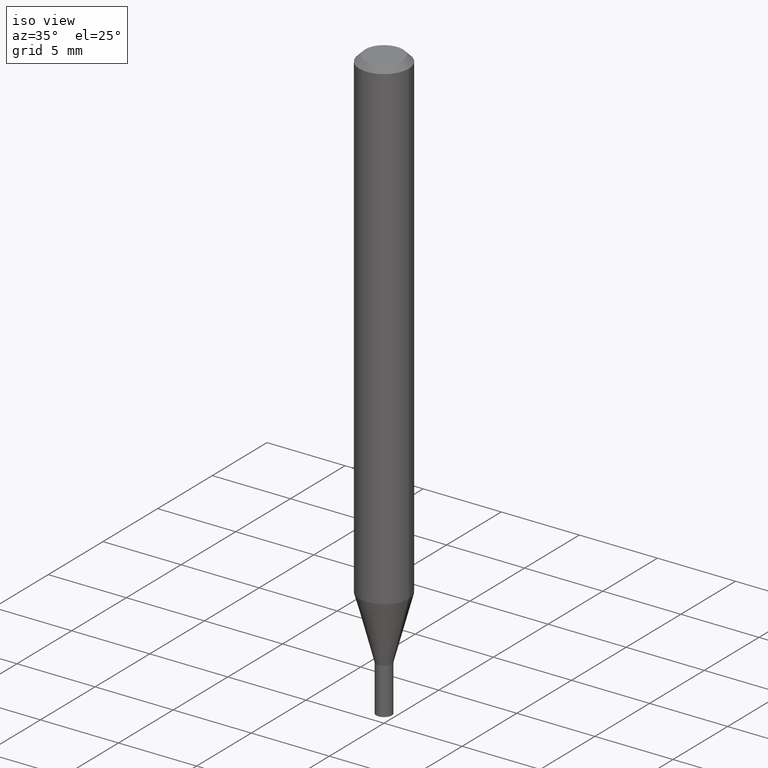
[diagram: clean part render]
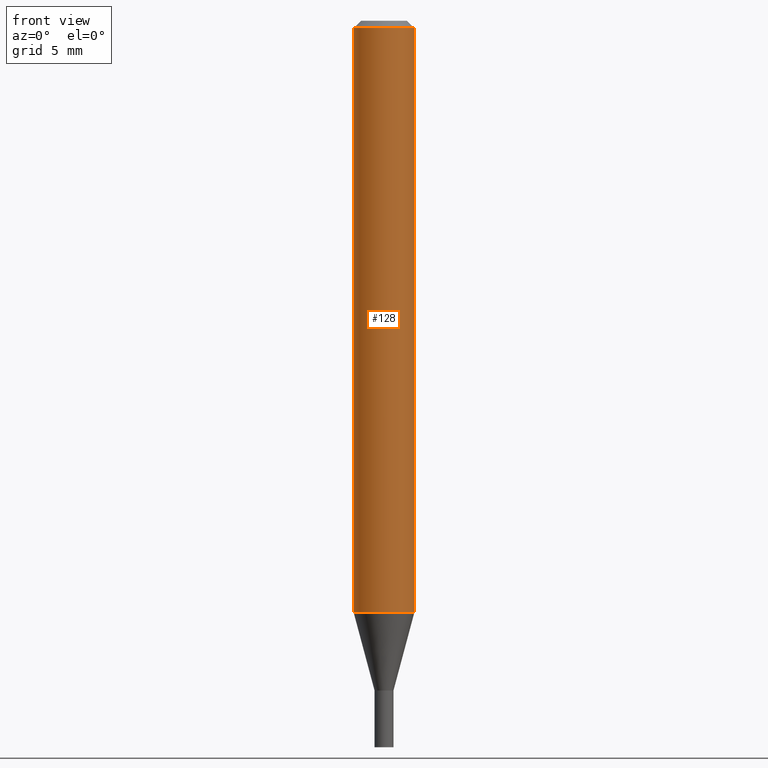
[diagram: tour spotlight — one face highlighted and labeled with its STEP entity id]
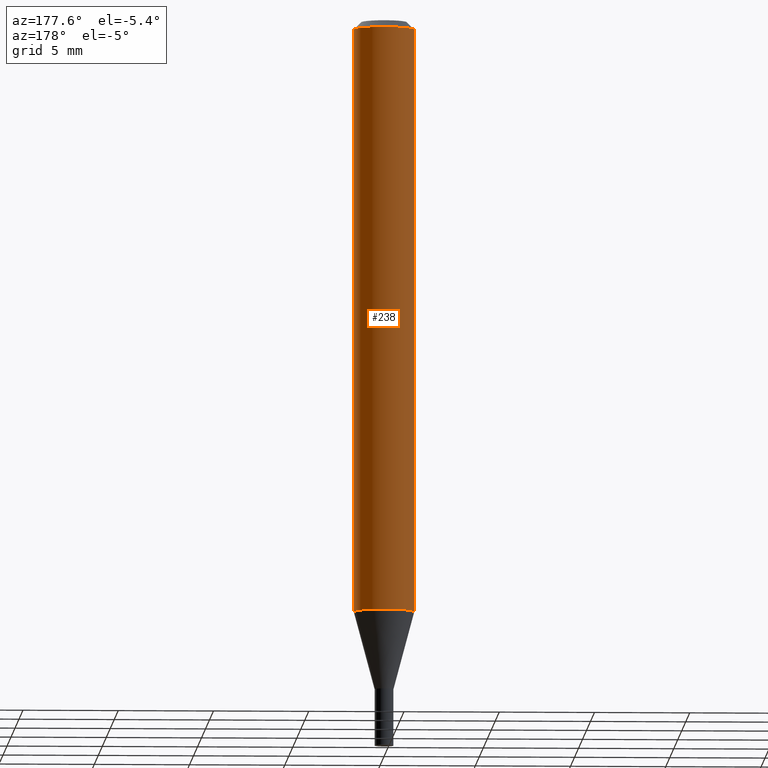
[diagram: tour spotlight — one face highlighted and labeled with its STEP entity id]
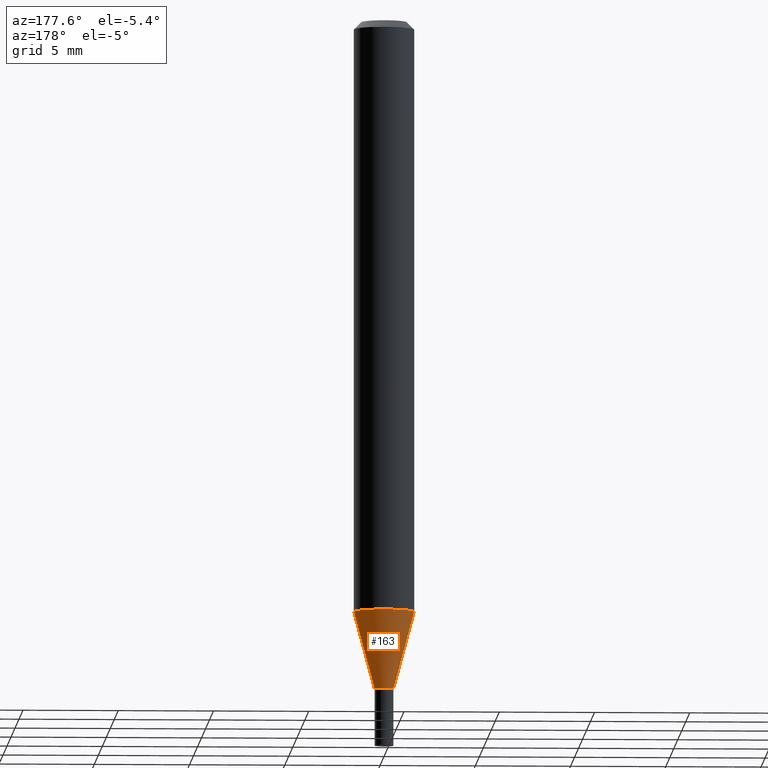
[diagram: tour spotlight — one face highlighted and labeled with its STEP entity id]
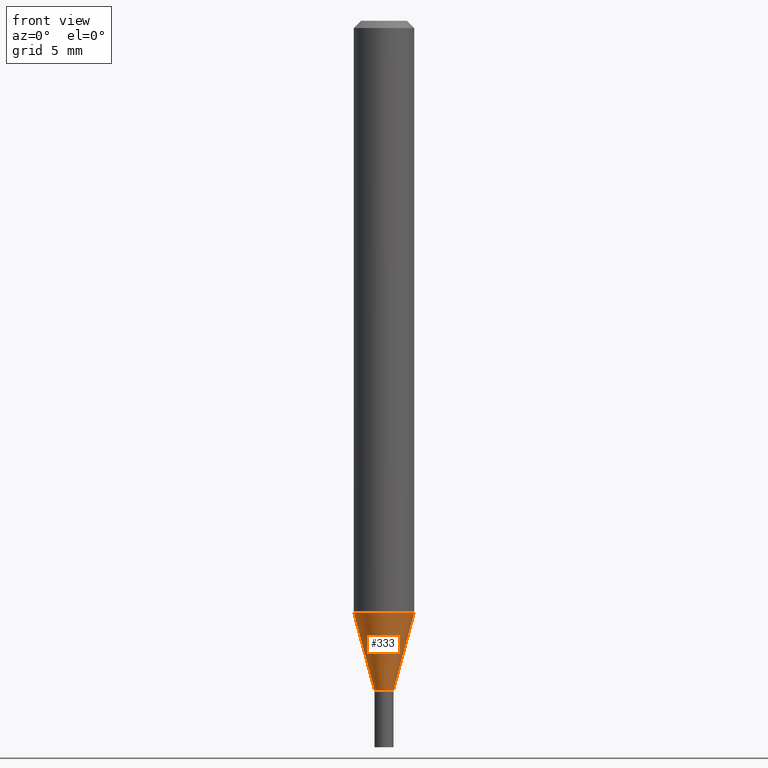
[diagram: tour spotlight — one face highlighted and labeled with its STEP entity id]
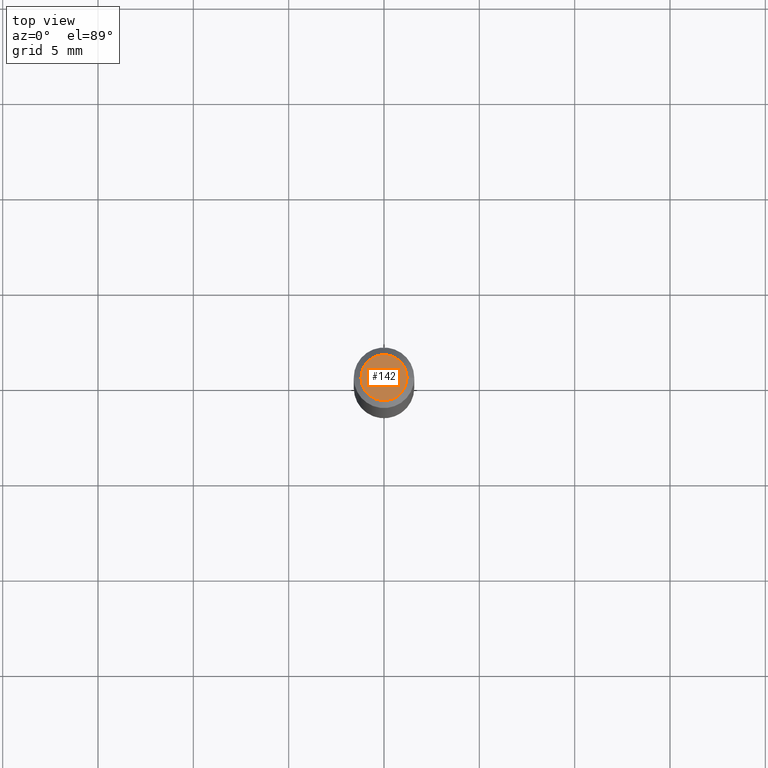
[diagram: tour spotlight — one face highlighted and labeled with its STEP entity id]
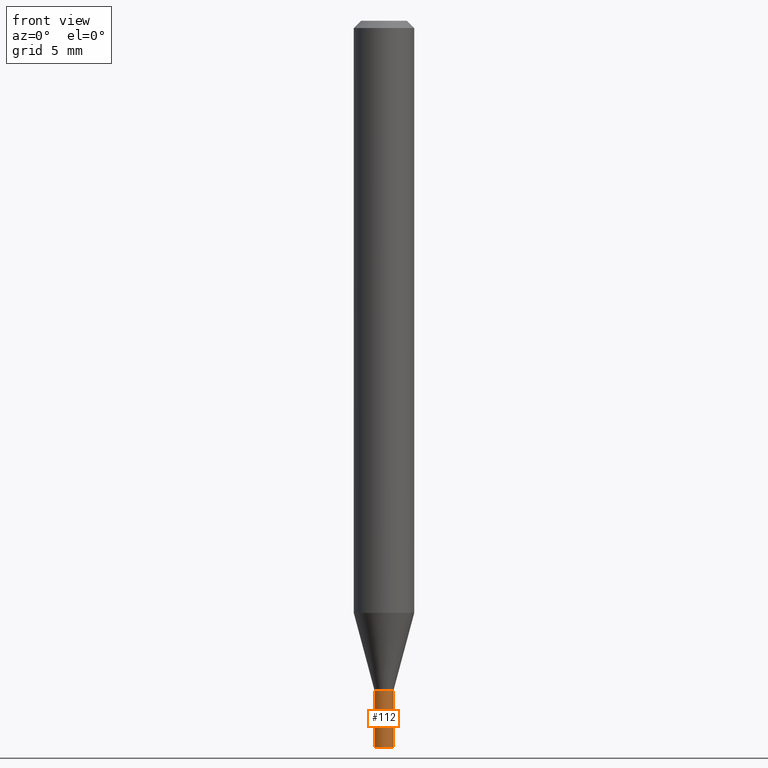
[diagram: tour spotlight — one face highlighted and labeled with its STEP entity id]
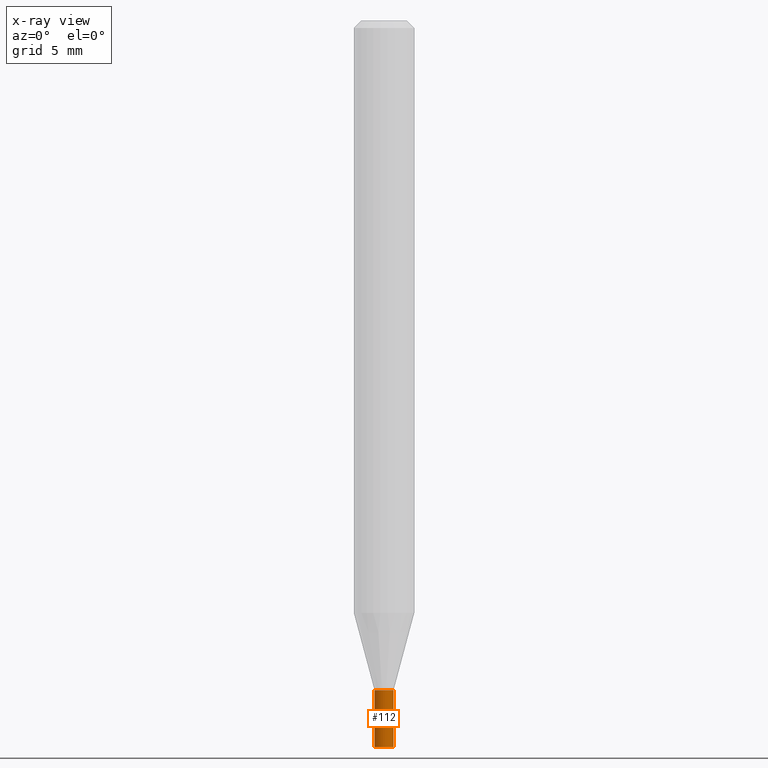
[diagram: x-ray of the same camera — body ghosted, this tour face saturated]
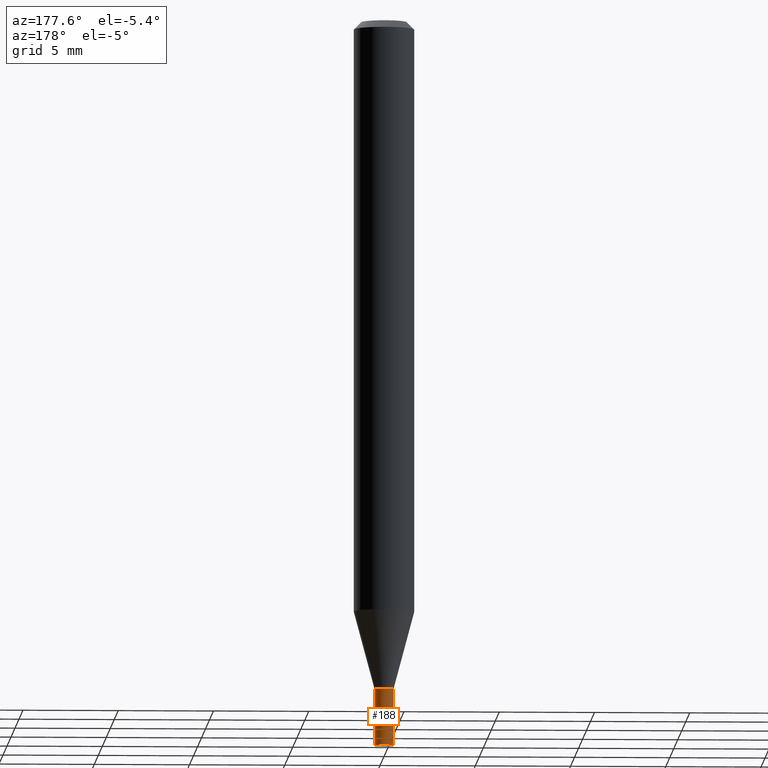
[diagram: tour spotlight — one face highlighted and labeled with its STEP entity id]
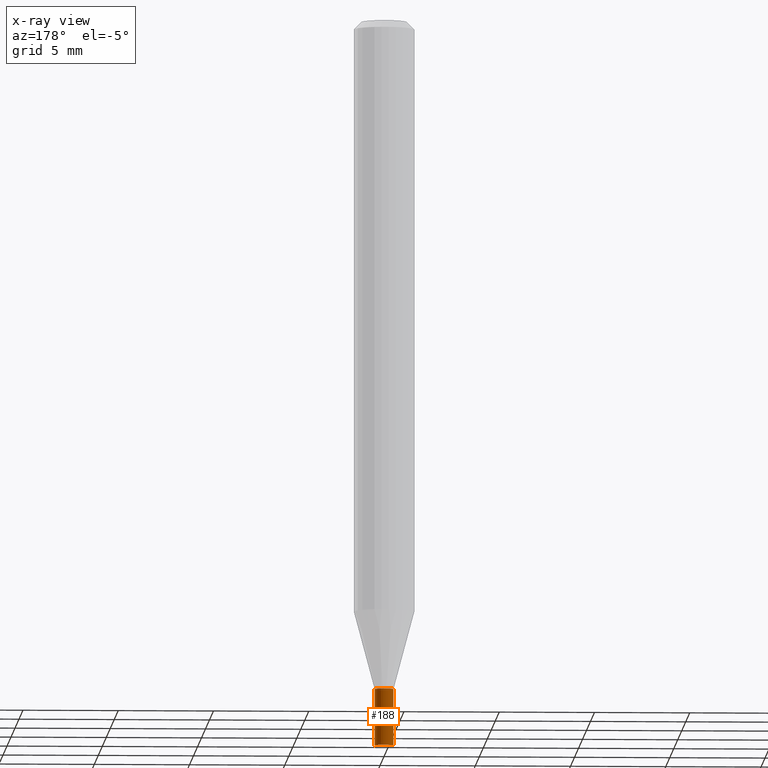
[diagram: x-ray of the same camera — body ghosted, this tour face saturated]
A machine part: a face-by-face anatomy tour. The part has 16 B-rep faces; the first image is the clean iso view, then the 7 largest visible faces are spotlighted one at a time (largest first), each with its STEP entity span.

Face 1 — front view, entity #128. In plain terms, the highlighted cylindrical surface (edge-blend (fillet) strip) has radius 1.5875 mm, axis along (-0, 0, 1).
Definition (entity closure, byte-faithful):
#7 = CARTESIAN_POINT ( 'NONE',  ( 0.000000000000000000, 0.000000000000000000, 0.000000000000000000 ) ) ;
#10 = VERTEX_POINT ( 'NONE', #277 ) ;
#13 = ORIENTED_EDGE ( 'NONE', *, *, #430, .F. ) ;
#30 = LINE ( 'NONE', #60, #462 ) ;
#42 = CARTESIAN_POINT ( 'NONE',  ( 0.06250000000000000000, -4.888073874380388472E-16, -0.01499999999999999944 ) ) ;
#60 = CARTESIAN_POINT ( 'NONE',  ( -0.06250000000000000000, 4.440892098500626162E-16, -3.074334431409316114E-30 ) ) ;
#63 = CARTESIAN_POINT ( 'NONE',  ( 2.989638964134708324E-29, -4.268412104359694115E-15, -1.222521815274537182 ) ) ;
#91 = AXIS2_PLACEMENT_3D ( 'NONE', #63, #208, #243 ) ;
#97 = CARTESIAN_POINT ( 'NONE',  ( -0.06250000000000000000, -3.824322894509631498E-15, -1.222521815274537182 ) ) ;
#106 = CARTESIAN_POINT ( 'NONE',  ( 3.668203209277705088E-31, -5.237222008264718399E-17, -0.01499999999999999944 ) ) ;
#128 = ADVANCED_FACE ( 'NONE', ( #398 ), #259, .T. ) ;
#152 = CARTESIAN_POINT ( 'NONE',  ( 0.06250000000000000000, -4.704847271715086573E-15, -1.222521815274537182 ) ) ;
#159 = DIRECTION ( 'NONE',  ( -2.445468806185136597E-29, 3.491481338843145583E-15, 1.000000000000000000 ) ) ;
#182 = DIRECTION ( 'NONE',  ( -2.445468806185136877E-29, 3.491481338843145188E-15, 1.000000000000000000 ) ) ;
#186 = VERTEX_POINT ( 'NONE', #42 ) ;
#197 = VERTEX_POINT ( 'NONE', #152 ) ;
#198 = ORIENTED_EDGE ( 'NONE', *, *, #204, .T. ) ;
#204 = EDGE_CURVE ( 'NONE', #197, #186, #400, .T. ) ;
#208 = DIRECTION ( 'NONE',  ( -2.445468806185136597E-29, 3.491481338843145583E-15, 1.000000000000000000 ) ) ;
#221 = DIRECTION ( 'NONE',  ( 1.000000000000000000, -6.982962677686266711E-15, 4.876176775795935793E-29 ) ) ;
#226 = VECTOR ( 'NONE', #182, 39.37007874015748143 ) ;
#228 = CARTESIAN_POINT ( 'NONE',  ( 0.06250000000000000000, -4.364351673553916694E-16, 3.047610484872459871E-30 ) ) ;
#243 = DIRECTION ( 'NONE',  ( 1.000000000000000000, -6.982962677686262766E-15, 0.000000000000000000 ) ) ;
#259 = CYLINDRICAL_SURFACE ( 'NONE', #272, 0.06250000000000000000 ) ;
#262 = ORIENTED_EDGE ( 'NONE', *, *, #340, .F. ) ;
#272 = AXIS2_PLACEMENT_3D ( 'NONE', #7, #159, #221 ) ;
#277 = CARTESIAN_POINT ( 'NONE',  ( -0.06250000000000000000, -1.716302952371107981E-15, -0.01499999999999999944 ) ) ;
#279 = DIRECTION ( 'NONE',  ( -2.445468806185136877E-29, 3.491481338843145188E-15, 1.000000000000000000 ) ) ;
#306 = CIRCLE ( 'NONE', #91, 0.06250000000000000000 ) ;
#322 = CIRCLE ( 'NONE', #411, 0.06250000000000000000 ) ;
#340 = EDGE_CURVE ( 'NONE', #362, #10, #30, .T. ) ;
#362 = VERTEX_POINT ( 'NONE', #97 ) ;
#385 = DIRECTION ( 'NONE',  ( -2.445468806185136597E-29, 3.491481338843145583E-15, 1.000000000000000000 ) ) ;
#388 = EDGE_CURVE ( 'NONE', #362, #197, #306, .T. ) ;
#398 = FACE_OUTER_BOUND ( 'NONE', #447, .T. ) ;
#400 = LINE ( 'NONE', #228, #226 ) ;
#411 = AXIS2_PLACEMENT_3D ( 'NONE', #106, #385, #420 ) ;
#420 = DIRECTION ( 'NONE',  ( 1.000000000000000000, -6.982962677686266711E-15, 0.000000000000000000 ) ) ;
#430 = EDGE_CURVE ( 'NONE', #10, #186, #322, .T. ) ;
#447 = EDGE_LOOP ( 'NONE', ( #262, #454, #198, #13 ) ) ;
#454 = ORIENTED_EDGE ( 'NONE', *, *, #388, .T. ) ;
#462 = VECTOR ( 'NONE', #279, 39.37007874015748143 ) ;

Face 2 — auxiliary view, entity #238. In plain terms, the highlighted cylindrical surface (edge-blend (fillet) strip) has radius 1.5875 mm, axis along (-0, 0, 1).
Definition (entity closure, byte-faithful):
#3 = AXIS2_PLACEMENT_3D ( 'NONE', #48, #77, #223 ) ;
#10 = VERTEX_POINT ( 'NONE', #277 ) ;
#30 = LINE ( 'NONE', #60, #462 ) ;
#42 = CARTESIAN_POINT ( 'NONE',  ( 0.06250000000000000000, -4.888073874380388472E-16, -0.01499999999999999944 ) ) ;
#48 = CARTESIAN_POINT ( 'NONE',  ( 2.989638964134708324E-29, -4.268412104359694115E-15, -1.222521815274537182 ) ) ;
#51 = ORIENTED_EDGE ( 'NONE', *, *, #204, .F. ) ;
#53 = DIRECTION ( 'NONE',  ( 1.000000000000000000, -6.982962677686266711E-15, 0.000000000000000000 ) ) ;
#56 = ORIENTED_EDGE ( 'NONE', *, *, #177, .T. ) ;
#60 = CARTESIAN_POINT ( 'NONE',  ( -0.06250000000000000000, 4.440892098500626162E-16, -3.074334431409316114E-30 ) ) ;
#61 = ORIENTED_EDGE ( 'NONE', *, *, #422, .F. ) ;
#65 = AXIS2_PLACEMENT_3D ( 'NONE', #233, #372, #53 ) ;
#77 = DIRECTION ( 'NONE',  ( -2.445468806185136597E-29, 3.491481338843145583E-15, 1.000000000000000000 ) ) ;
#97 = CARTESIAN_POINT ( 'NONE',  ( -0.06250000000000000000, -3.824322894509631498E-15, -1.222521815274537182 ) ) ;
#100 = FACE_OUTER_BOUND ( 'NONE', #334, .T. ) ;
#129 = DIRECTION ( 'NONE',  ( 1.000000000000000000, -6.982962677686266711E-15, 4.876176775795935793E-29 ) ) ;
#132 = ORIENTED_EDGE ( 'NONE', *, *, #340, .T. ) ;
#134 = DIRECTION ( 'NONE',  ( -2.445468806185136597E-29, 3.491481338843145583E-15, 1.000000000000000000 ) ) ;
#152 = CARTESIAN_POINT ( 'NONE',  ( 0.06250000000000000000, -4.704847271715086573E-15, -1.222521815274537182 ) ) ;
#177 = EDGE_CURVE ( 'NONE', #197, #362, #344, .T. ) ;
#182 = DIRECTION ( 'NONE',  ( -2.445468806185136877E-29, 3.491481338843145188E-15, 1.000000000000000000 ) ) ;
#186 = VERTEX_POINT ( 'NONE', #42 ) ;
#197 = VERTEX_POINT ( 'NONE', #152 ) ;
#204 = EDGE_CURVE ( 'NONE', #197, #186, #400, .T. ) ;
#223 = DIRECTION ( 'NONE',  ( 1.000000000000000000, -6.982962677686262766E-15, 0.000000000000000000 ) ) ;
#226 = VECTOR ( 'NONE', #182, 39.37007874015748143 ) ;
#228 = CARTESIAN_POINT ( 'NONE',  ( 0.06250000000000000000, -4.364351673553916694E-16, 3.047610484872459871E-30 ) ) ;
#233 = CARTESIAN_POINT ( 'NONE',  ( 3.668203209277705088E-31, -5.237222008264718399E-17, -0.01499999999999999944 ) ) ;
#238 = ADVANCED_FACE ( 'NONE', ( #100 ), #312, .T. ) ;
#265 = CIRCLE ( 'NONE', #65, 0.06250000000000000000 ) ;
#277 = CARTESIAN_POINT ( 'NONE',  ( -0.06250000000000000000, -1.716302952371107981E-15, -0.01499999999999999944 ) ) ;
#279 = DIRECTION ( 'NONE',  ( -2.445468806185136877E-29, 3.491481338843145188E-15, 1.000000000000000000 ) ) ;
#297 = AXIS2_PLACEMENT_3D ( 'NONE', #309, #134, #129 ) ;
#309 = CARTESIAN_POINT ( 'NONE',  ( 0.000000000000000000, 0.000000000000000000, 0.000000000000000000 ) ) ;
#312 = CYLINDRICAL_SURFACE ( 'NONE', #297, 0.06250000000000000000 ) ;
#334 = EDGE_LOOP ( 'NONE', ( #56, #132, #61, #51 ) ) ;
#340 = EDGE_CURVE ( 'NONE', #362, #10, #30, .T. ) ;
#344 = CIRCLE ( 'NONE', #3, 0.06250000000000000000 ) ;
#362 = VERTEX_POINT ( 'NONE', #97 ) ;
#372 = DIRECTION ( 'NONE',  ( -2.445468806185136597E-29, 3.491481338843145583E-15, 1.000000000000000000 ) ) ;
#400 = LINE ( 'NONE', #228, #226 ) ;
#422 = EDGE_CURVE ( 'NONE', #186, #10, #265, .T. ) ;
#462 = VECTOR ( 'NONE', #279, 39.37007874015748143 ) ;

Face 3 — auxiliary view, entity #163. In plain terms, the highlighted conical surface has half-angle 15 deg.
Definition (entity closure, byte-faithful):
#3 = AXIS2_PLACEMENT_3D ( 'NONE', #48, #77, #223 ) ;
#29 = ORIENTED_EDGE ( 'NONE', *, *, #455, .T. ) ;
#45 = CARTESIAN_POINT ( 'NONE',  ( 0.01949999999999964956, -4.964886463834950209E-15, -1.383000000000000007 ) ) ;
#48 = CARTESIAN_POINT ( 'NONE',  ( 2.989638964134708324E-29, -4.268412104359694115E-15, -1.222521815274537182 ) ) ;
#50 = DIRECTION ( 'NONE',  ( 0.2588190451025211281, 1.565188264969622954E-15, 0.9659258262890679791 ) ) ;
#55 = AXIS2_PLACEMENT_3D ( 'NONE', #147, #116, #196 ) ;
#77 = DIRECTION ( 'NONE',  ( -2.445468806185136597E-29, 3.491481338843145583E-15, 1.000000000000000000 ) ) ;
#78 = EDGE_CURVE ( 'NONE', #415, #362, #444, .T. ) ;
#79 = EDGE_LOOP ( 'NONE', ( #29, #278, #416, #135 ) ) ;
#88 = CARTESIAN_POINT ( 'NONE',  ( -0.01949999999999964956, -4.257242876328242188E-15, -1.383000000000000007 ) ) ;
#89 = DIRECTION ( 'NONE',  ( -0.2588190451025211281, 5.211531920934547886E-15, 0.9659258262890679791 ) ) ;
#97 = CARTESIAN_POINT ( 'NONE',  ( -0.06250000000000000000, -3.824322894509631498E-15, -1.222521815274537182 ) ) ;
#103 = EDGE_CURVE ( 'NONE', #293, #197, #193, .T. ) ;
#116 = DIRECTION ( 'NONE',  ( -2.445468806185136597E-29, 3.491481338843145583E-15, 1.000000000000000000 ) ) ;
#126 = CARTESIAN_POINT ( 'NONE',  ( -0.01949999999999964956, -4.690162858146853666E-15, -1.383000000000000007 ) ) ;
#131 = CARTESIAN_POINT ( 'NONE',  ( 0.01949999999999964956, -4.964886463834950209E-15, -1.383000000000000007 ) ) ;
#135 = ORIENTED_EDGE ( 'NONE', *, *, #103, .F. ) ;
#147 = CARTESIAN_POINT ( 'NONE',  ( 3.382083358954044281E-29, -4.828718691620070564E-15, -1.383000000000000007 ) ) ;
#152 = CARTESIAN_POINT ( 'NONE',  ( 0.06250000000000000000, -4.704847271715086573E-15, -1.222521815274537182 ) ) ;
#163 = ADVANCED_FACE ( 'NONE', ( #325 ), #258, .T. ) ;
#170 = AXIS2_PLACEMENT_3D ( 'NONE', #386, #390, #350 ) ;
#177 = EDGE_CURVE ( 'NONE', #197, #362, #344, .T. ) ;
#193 = LINE ( 'NONE', #45, #326 ) ;
#196 = DIRECTION ( 'NONE',  ( 1.000000000000000000, -6.982962677686284065E-15, 0.000000000000000000 ) ) ;
#197 = VERTEX_POINT ( 'NONE', #152 ) ;
#223 = DIRECTION ( 'NONE',  ( 1.000000000000000000, -6.982962677686262766E-15, 0.000000000000000000 ) ) ;
#258 = CONICAL_SURFACE ( 'NONE', #55, 0.01949999999999964956, 0.2617993877991498519 ) ;
#278 = ORIENTED_EDGE ( 'NONE', *, *, #78, .T. ) ;
#293 = VERTEX_POINT ( 'NONE', #131 ) ;
#325 = FACE_OUTER_BOUND ( 'NONE', #79, .T. ) ;
#326 = VECTOR ( 'NONE', #50, 39.37007874015748854 ) ;
#344 = CIRCLE ( 'NONE', #3, 0.06250000000000000000 ) ;
#350 = DIRECTION ( 'NONE',  ( 1.000000000000000000, -6.982962677686284065E-15, 0.000000000000000000 ) ) ;
#362 = VERTEX_POINT ( 'NONE', #97 ) ;
#383 = VECTOR ( 'NONE', #89, 39.37007874015748854 ) ;
#386 = CARTESIAN_POINT ( 'NONE',  ( 3.382083358954044281E-29, -4.828718691620070564E-15, -1.383000000000000007 ) ) ;
#390 = DIRECTION ( 'NONE',  ( -2.445468806185136597E-29, 3.491481338843145583E-15, 1.000000000000000000 ) ) ;
#415 = VERTEX_POINT ( 'NONE', #88 ) ;
#416 = ORIENTED_EDGE ( 'NONE', *, *, #177, .F. ) ;
#444 = LINE ( 'NONE', #126, #383 ) ;
#455 = EDGE_CURVE ( 'NONE', #293, #415, #463, .T. ) ;
#463 = CIRCLE ( 'NONE', #170, 0.01949999999999964956 ) ;

Face 4 — front view, entity #333. In plain terms, the highlighted conical surface has half-angle 15 deg.
Definition (entity closure, byte-faithful):
#21 = DIRECTION ( 'NONE',  ( -2.445468806185136597E-29, 3.491481338843145583E-15, 1.000000000000000000 ) ) ;
#45 = CARTESIAN_POINT ( 'NONE',  ( 0.01949999999999964956, -4.964886463834950209E-15, -1.383000000000000007 ) ) ;
#49 = EDGE_LOOP ( 'NONE', ( #203, #303, #133, #195 ) ) ;
#50 = DIRECTION ( 'NONE',  ( 0.2588190451025211281, 1.565188264969622954E-15, 0.9659258262890679791 ) ) ;
#63 = CARTESIAN_POINT ( 'NONE',  ( 2.989638964134708324E-29, -4.268412104359694115E-15, -1.222521815274537182 ) ) ;
#78 = EDGE_CURVE ( 'NONE', #415, #362, #444, .T. ) ;
#88 = CARTESIAN_POINT ( 'NONE',  ( -0.01949999999999964956, -4.257242876328242188E-15, -1.383000000000000007 ) ) ;
#89 = DIRECTION ( 'NONE',  ( -0.2588190451025211281, 5.211531920934547886E-15, 0.9659258262890679791 ) ) ;
#91 = AXIS2_PLACEMENT_3D ( 'NONE', #63, #208, #243 ) ;
#97 = CARTESIAN_POINT ( 'NONE',  ( -0.06250000000000000000, -3.824322894509631498E-15, -1.222521815274537182 ) ) ;
#103 = EDGE_CURVE ( 'NONE', #293, #197, #193, .T. ) ;
#114 = CIRCLE ( 'NONE', #374, 0.01949999999999964956 ) ;
#126 = CARTESIAN_POINT ( 'NONE',  ( -0.01949999999999964956, -4.690162858146853666E-15, -1.383000000000000007 ) ) ;
#131 = CARTESIAN_POINT ( 'NONE',  ( 0.01949999999999964956, -4.964886463834950209E-15, -1.383000000000000007 ) ) ;
#133 = ORIENTED_EDGE ( 'NONE', *, *, #103, .T. ) ;
#152 = CARTESIAN_POINT ( 'NONE',  ( 0.06250000000000000000, -4.704847271715086573E-15, -1.222521815274537182 ) ) ;
#161 = DIRECTION ( 'NONE',  ( 1.000000000000000000, -6.982962677686284065E-15, 0.000000000000000000 ) ) ;
#184 = EDGE_CURVE ( 'NONE', #415, #293, #114, .T. ) ;
#193 = LINE ( 'NONE', #45, #326 ) ;
#195 = ORIENTED_EDGE ( 'NONE', *, *, #388, .F. ) ;
#197 = VERTEX_POINT ( 'NONE', #152 ) ;
#203 = ORIENTED_EDGE ( 'NONE', *, *, #78, .F. ) ;
#208 = DIRECTION ( 'NONE',  ( -2.445468806185136597E-29, 3.491481338843145583E-15, 1.000000000000000000 ) ) ;
#234 = AXIS2_PLACEMENT_3D ( 'NONE', #414, #21, #161 ) ;
#243 = DIRECTION ( 'NONE',  ( 1.000000000000000000, -6.982962677686262766E-15, 0.000000000000000000 ) ) ;
#275 = FACE_OUTER_BOUND ( 'NONE', #49, .T. ) ;
#293 = VERTEX_POINT ( 'NONE', #131 ) ;
#303 = ORIENTED_EDGE ( 'NONE', *, *, #184, .T. ) ;
#306 = CIRCLE ( 'NONE', #91, 0.06250000000000000000 ) ;
#308 = CONICAL_SURFACE ( 'NONE', #234, 0.01949999999999964956, 0.2617993877991498519 ) ;
#326 = VECTOR ( 'NONE', #50, 39.37007874015748854 ) ;
#332 = DIRECTION ( 'NONE',  ( 1.000000000000000000, -6.982962677686284065E-15, 0.000000000000000000 ) ) ;
#333 = ADVANCED_FACE ( 'NONE', ( #275 ), #308, .T. ) ;
#361 = DIRECTION ( 'NONE',  ( -2.445468806185136597E-29, 3.491481338843145583E-15, 1.000000000000000000 ) ) ;
#362 = VERTEX_POINT ( 'NONE', #97 ) ;
#374 = AXIS2_PLACEMENT_3D ( 'NONE', #396, #361, #332 ) ;
#383 = VECTOR ( 'NONE', #89, 39.37007874015748854 ) ;
#388 = EDGE_CURVE ( 'NONE', #362, #197, #306, .T. ) ;
#396 = CARTESIAN_POINT ( 'NONE',  ( 3.382083358954044281E-29, -4.828718691620070564E-15, -1.383000000000000007 ) ) ;
#414 = CARTESIAN_POINT ( 'NONE',  ( 3.382083358954044281E-29, -4.828718691620070564E-15, -1.383000000000000007 ) ) ;
#415 = VERTEX_POINT ( 'NONE', #88 ) ;
#444 = LINE ( 'NONE', #126, #383 ) ;

Face 5 — top view, entity #142. In plain terms, the highlighted planar face has unit normal (0, -0, -1).
Definition (entity closure, byte-faithful):
#25 = CARTESIAN_POINT ( 'NONE',  ( 1.380570281168130538E-44, -1.971088472471417818E-30, -5.645421759935600567E-16 ) ) ;
#32 = EDGE_CURVE ( 'NONE', #210, #366, #225, .T. ) ;
#76 = DIRECTION ( 'NONE',  ( -1.000000000000000000, 6.982962677686265922E-15, -4.876176775795935793E-29 ) ) ;
#94 = CARTESIAN_POINT ( 'NONE',  ( 1.380570281168130538E-44, -1.971088472471417818E-30, -5.645421759935600567E-16 ) ) ;
#98 = ORIENTED_EDGE ( 'NONE', *, *, #276, .T. ) ;
#101 = CIRCLE ( 'NONE', #357, 0.04749999999999999362 ) ;
#118 = ORIENTED_EDGE ( 'NONE', *, *, #32, .T. ) ;
#142 = ADVANCED_FACE ( 'NONE', ( #287 ), #359, .F. ) ;
#149 = DIRECTION ( 'NONE',  ( 2.438088387897960049E-29, -3.491481338843145188E-15, -1.000000000000000000 ) ) ;
#210 = VERTEX_POINT ( 'NONE', #367 ) ;
#225 = CIRCLE ( 'NONE', #401, 0.04749999999999999362 ) ;
#227 = EDGE_LOOP ( 'NONE', ( #118, #98 ) ) ;
#240 = DIRECTION ( 'NONE',  ( -2.445468806185136597E-29, 3.491481338843145583E-15, 1.000000000000000000 ) ) ;
#276 = EDGE_CURVE ( 'NONE', #366, #210, #101, .T. ) ;
#287 = FACE_OUTER_BOUND ( 'NONE', #227, .T. ) ;
#310 = DIRECTION ( 'NONE',  ( 1.000000000000000000, -6.982962677686267499E-15, 4.852736867747366768E-29 ) ) ;
#338 = DIRECTION ( 'NONE',  ( 1.000000000000000000, -6.982962677686267499E-15, 4.852736867747366768E-29 ) ) ;
#357 = AXIS2_PLACEMENT_3D ( 'NONE', #94, #453, #338 ) ;
#359 = PLANE ( 'NONE',  #365 ) ;
#365 = AXIS2_PLACEMENT_3D ( 'NONE', #443, #149, #76 ) ;
#366 = VERTEX_POINT ( 'NONE', #417 ) ;
#367 = CARTESIAN_POINT ( 'NONE',  ( -0.04749999999999999362, 3.578768372314200645E-16, -5.645421759935625219E-16 ) ) ;
#401 = AXIS2_PLACEMENT_3D ( 'NONE', #25, #240, #310 ) ;
#417 = CARTESIAN_POINT ( 'NONE',  ( 0.04749999999999999362, -4.035134999187588484E-16, -5.645421759935574929E-16 ) ) ;
#443 = CARTESIAN_POINT ( 'NONE',  ( 3.316907271900976096E-16, 0.04749999999999999362, -4.481164515918294248E-16 ) ) ;
#453 = DIRECTION ( 'NONE',  ( -2.445468806185136597E-29, 3.491481338843145583E-15, 1.000000000000000000 ) ) ;

Face 6 — front view, entity #112. An x-ray twin of the same camera follows (body ghosted, this face saturated) — the face is partly hidden behind the body. In plain terms, the highlighted cylindrical surface (edge-blend (fillet) strip) has radius 0.4953 mm, axis along (-0, 0, 1).
Definition (entity closure, byte-faithful):
#17 = DIRECTION ( 'NONE',  ( 1.000000000000000000, -6.982962677686265922E-15, 4.876176775795935793E-29 ) ) ;
#26 = VECTOR ( 'NONE', #341, 39.37007874015748143 ) ;
#27 = EDGE_CURVE ( 'NONE', #346, #407, #364, .T. ) ;
#41 = DIRECTION ( 'NONE',  ( -2.445468806185136597E-29, 3.491481338843145583E-15, 1.000000000000000000 ) ) ;
#59 = ORIENTED_EDGE ( 'NONE', *, *, #27, .T. ) ;
#68 = CARTESIAN_POINT ( 'NONE',  ( -0.01949999999999999997, -4.894414516469175106E-15, -1.383000000000000229 ) ) ;
#80 = DIRECTION ( 'NONE',  ( -2.445468806185136877E-29, 3.491481338843145188E-15, 1.000000000000000000 ) ) ;
#90 = CARTESIAN_POINT ( 'NONE',  ( 3.382083358954044842E-29, -4.828718691620071353E-15, -1.383000000000000229 ) ) ;
#112 = ADVANCED_FACE ( 'NONE', ( #121 ), #260, .T. ) ;
#121 = FACE_OUTER_BOUND ( 'NONE', #327, .T. ) ;
#138 = EDGE_CURVE ( 'NONE', #346, #456, #405, .T. ) ;
#160 = DIRECTION ( 'NONE',  ( -2.445468806185136597E-29, 3.491481338843145583E-15, 1.000000000000000000 ) ) ;
#164 = CARTESIAN_POINT ( 'NONE',  ( -0.01949999999999999997, -4.894414516469175106E-15, -1.500000000000000222 ) ) ;
#166 = CARTESIAN_POINT ( 'NONE',  ( 0.01949999999999999997, -4.964886463834953365E-15, -1.383000000000000229 ) ) ;
#187 = CIRCLE ( 'NONE', #199, 0.01949999999999999997 ) ;
#199 = AXIS2_PLACEMENT_3D ( 'NONE', #90, #235, #457 ) ;
#235 = DIRECTION ( 'NONE',  ( -2.445468806185136597E-29, 3.491481338843145583E-15, 1.000000000000000000 ) ) ;
#244 = AXIS2_PLACEMENT_3D ( 'NONE', #267, #41, #17 ) ;
#248 = EDGE_CURVE ( 'NONE', #407, #268, #302, .T. ) ;
#260 = CYLINDRICAL_SURFACE ( 'NONE', #244, 0.01949999999999999997 ) ;
#267 = CARTESIAN_POINT ( 'NONE',  ( 0.000000000000000000, 0.000000000000000000, 0.000000000000000000 ) ) ;
#268 = VERTEX_POINT ( 'NONE', #166 ) ;
#269 = ORIENTED_EDGE ( 'NONE', *, *, #138, .F. ) ;
#283 = EDGE_CURVE ( 'NONE', #456, #268, #187, .T. ) ;
#285 = ORIENTED_EDGE ( 'NONE', *, *, #283, .F. ) ;
#302 = LINE ( 'NONE', #410, #26 ) ;
#311 = ORIENTED_EDGE ( 'NONE', *, *, #248, .T. ) ;
#315 = VECTOR ( 'NONE', #80, 39.37007874015748143 ) ;
#327 = EDGE_LOOP ( 'NONE', ( #269, #59, #311, #285 ) ) ;
#328 = CARTESIAN_POINT ( 'NONE',  ( -0.01949999999999999997, 1.385558334732195360E-16, -9.591923425997065392E-31 ) ) ;
#341 = DIRECTION ( 'NONE',  ( -2.445468806185136877E-29, 3.491481338843145188E-15, 1.000000000000000000 ) ) ;
#342 = DIRECTION ( 'NONE',  ( 1.000000000000000000, -6.982962677686258033E-15, 0.000000000000000000 ) ) ;
#346 = VERTEX_POINT ( 'NONE', #164 ) ;
#364 = CIRCLE ( 'NONE', #424, 0.01949999999999999997 ) ;
#379 = CARTESIAN_POINT ( 'NONE',  ( 3.668203209277704895E-29, -5.237222008264718177E-15, -1.500000000000000222 ) ) ;
#405 = LINE ( 'NONE', #328, #315 ) ;
#407 = VERTEX_POINT ( 'NONE', #408 ) ;
#408 = CARTESIAN_POINT ( 'NONE',  ( 0.01949999999999999997, -5.373389780479600977E-15, -1.500000000000000222 ) ) ;
#410 = CARTESIAN_POINT ( 'NONE',  ( 0.01949999999999999997, -1.361677722148821841E-16, 9.508544712802074656E-31 ) ) ;
#424 = AXIS2_PLACEMENT_3D ( 'NONE', #379, #160, #342 ) ;
#456 = VERTEX_POINT ( 'NONE', #68 ) ;
#457 = DIRECTION ( 'NONE',  ( 1.000000000000000000, -6.982962677686258033E-15, 0.000000000000000000 ) ) ;

Face 7 — auxiliary view, entity #188. An x-ray twin of the same camera follows (body ghosted, this face saturated) — the face is partly hidden behind the body. In plain terms, the highlighted cylindrical surface (edge-blend (fillet) strip) has radius 0.4953 mm, axis along (-0, 0, 1).
Definition (entity closure, byte-faithful):
#20 = EDGE_CURVE ( 'NONE', #407, #346, #450, .T. ) ;
#26 = VECTOR ( 'NONE', #341, 39.37007874015748143 ) ;
#52 = ORIENTED_EDGE ( 'NONE', *, *, #248, .F. ) ;
#58 = DIRECTION ( 'NONE',  ( -2.445468806185136597E-29, 3.491481338843145583E-15, 1.000000000000000000 ) ) ;
#64 = ORIENTED_EDGE ( 'NONE', *, *, #138, .T. ) ;
#68 = CARTESIAN_POINT ( 'NONE',  ( -0.01949999999999999997, -4.894414516469175106E-15, -1.383000000000000229 ) ) ;
#74 = AXIS2_PLACEMENT_3D ( 'NONE', #433, #330, #363 ) ;
#80 = DIRECTION ( 'NONE',  ( -2.445468806185136877E-29, 3.491481338843145188E-15, 1.000000000000000000 ) ) ;
#83 = CYLINDRICAL_SURFACE ( 'NONE', #74, 0.01949999999999999997 ) ;
#87 = ORIENTED_EDGE ( 'NONE', *, *, #20, .T. ) ;
#108 = AXIS2_PLACEMENT_3D ( 'NONE', #130, #274, #168 ) ;
#130 = CARTESIAN_POINT ( 'NONE',  ( 3.668203209277704895E-29, -5.237222008264718177E-15, -1.500000000000000222 ) ) ;
#137 = CIRCLE ( 'NONE', #432, 0.01949999999999999997 ) ;
#138 = EDGE_CURVE ( 'NONE', #346, #456, #405, .T. ) ;
#164 = CARTESIAN_POINT ( 'NONE',  ( -0.01949999999999999997, -4.894414516469175106E-15, -1.500000000000000222 ) ) ;
#165 = EDGE_LOOP ( 'NONE', ( #87, #64, #399, #52 ) ) ;
#166 = CARTESIAN_POINT ( 'NONE',  ( 0.01949999999999999997, -4.964886463834953365E-15, -1.383000000000000229 ) ) ;
#168 = DIRECTION ( 'NONE',  ( 1.000000000000000000, -6.982962677686258033E-15, 0.000000000000000000 ) ) ;
#188 = ADVANCED_FACE ( 'NONE', ( #300 ), #83, .T. ) ;
#205 = CARTESIAN_POINT ( 'NONE',  ( 3.382083358954044842E-29, -4.828718691620071353E-15, -1.383000000000000229 ) ) ;
#206 = DIRECTION ( 'NONE',  ( 1.000000000000000000, -6.982962677686258033E-15, 0.000000000000000000 ) ) ;
#248 = EDGE_CURVE ( 'NONE', #407, #268, #302, .T. ) ;
#261 = EDGE_CURVE ( 'NONE', #268, #456, #137, .T. ) ;
#268 = VERTEX_POINT ( 'NONE', #166 ) ;
#274 = DIRECTION ( 'NONE',  ( -2.445468806185136597E-29, 3.491481338843145583E-15, 1.000000000000000000 ) ) ;
#300 = FACE_OUTER_BOUND ( 'NONE', #165, .T. ) ;
#302 = LINE ( 'NONE', #410, #26 ) ;
#315 = VECTOR ( 'NONE', #80, 39.37007874015748143 ) ;
#328 = CARTESIAN_POINT ( 'NONE',  ( -0.01949999999999999997, 1.385558334732195360E-16, -9.591923425997065392E-31 ) ) ;
#330 = DIRECTION ( 'NONE',  ( -2.445468806185136597E-29, 3.491481338843145583E-15, 1.000000000000000000 ) ) ;
#341 = DIRECTION ( 'NONE',  ( -2.445468806185136877E-29, 3.491481338843145188E-15, 1.000000000000000000 ) ) ;
#346 = VERTEX_POINT ( 'NONE', #164 ) ;
#363 = DIRECTION ( 'NONE',  ( 1.000000000000000000, -6.982962677686265922E-15, 4.876176775795935793E-29 ) ) ;
#399 = ORIENTED_EDGE ( 'NONE', *, *, #261, .F. ) ;
#405 = LINE ( 'NONE', #328, #315 ) ;
#407 = VERTEX_POINT ( 'NONE', #408 ) ;
#408 = CARTESIAN_POINT ( 'NONE',  ( 0.01949999999999999997, -5.373389780479600977E-15, -1.500000000000000222 ) ) ;
#410 = CARTESIAN_POINT ( 'NONE',  ( 0.01949999999999999997, -1.361677722148821841E-16, 9.508544712802074656E-31 ) ) ;
#432 = AXIS2_PLACEMENT_3D ( 'NONE', #205, #58, #206 ) ;
#433 = CARTESIAN_POINT ( 'NONE',  ( 0.000000000000000000, 0.000000000000000000, 0.000000000000000000 ) ) ;
#450 = CIRCLE ( 'NONE', #108, 0.01949999999999999997 ) ;
#456 = VERTEX_POINT ( 'NONE', #68 ) ;